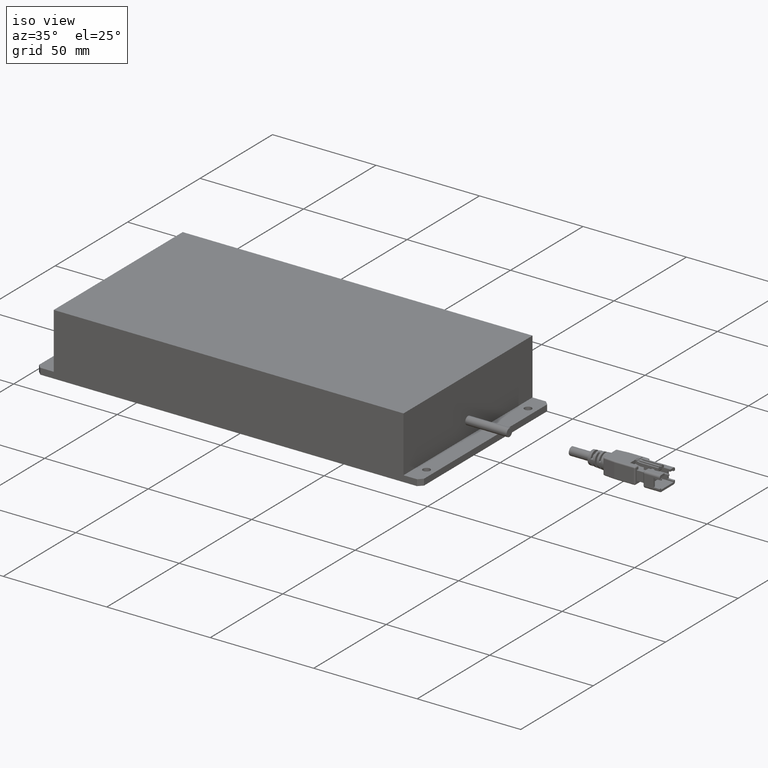
[diagram: clean part render]
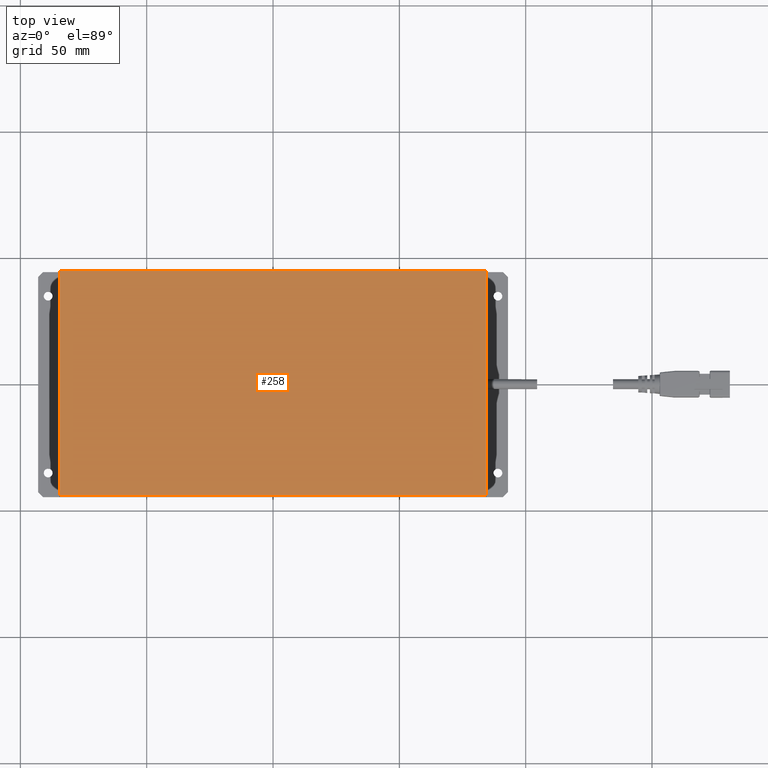
[diagram: tour spotlight — one face highlighted and labeled with its STEP entity id]
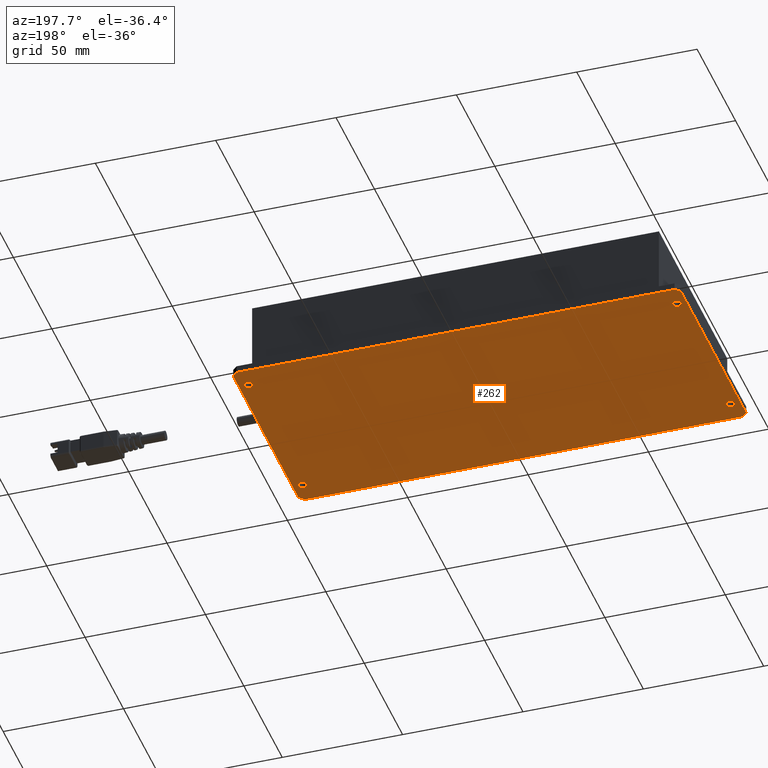
[diagram: tour spotlight — one face highlighted and labeled with its STEP entity id]
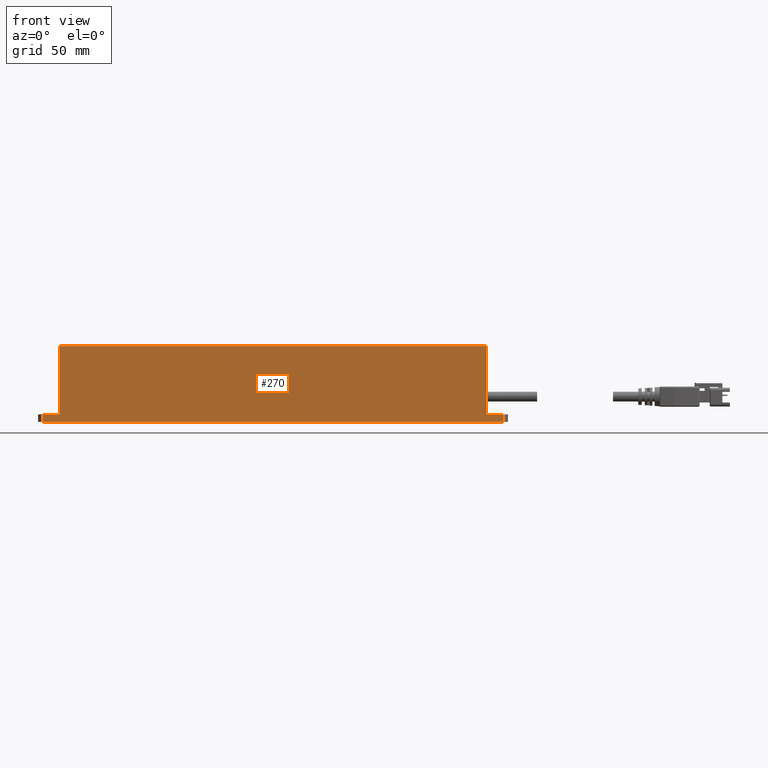
[diagram: tour spotlight — one face highlighted and labeled with its STEP entity id]
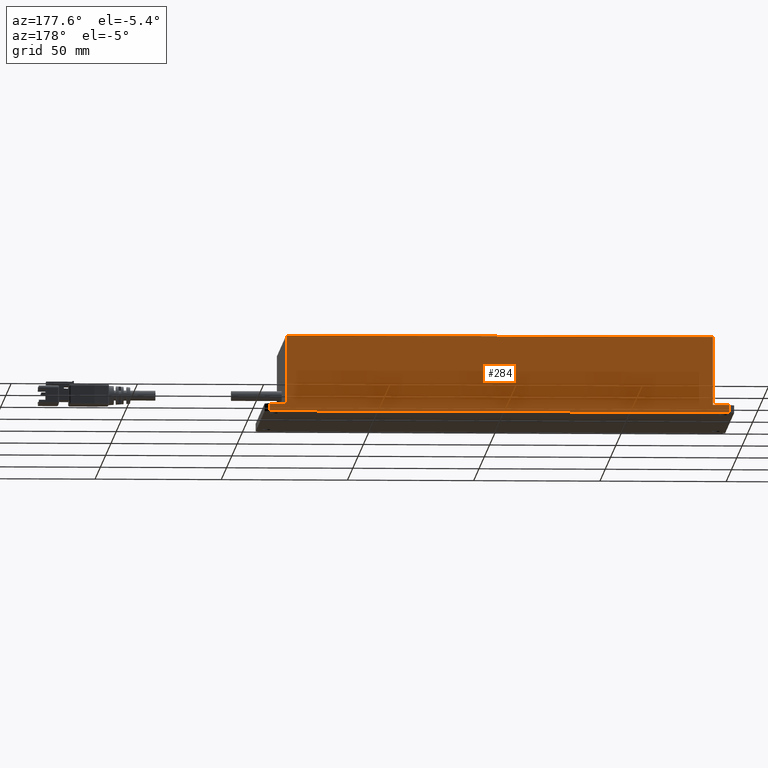
[diagram: tour spotlight — one face highlighted and labeled with its STEP entity id]
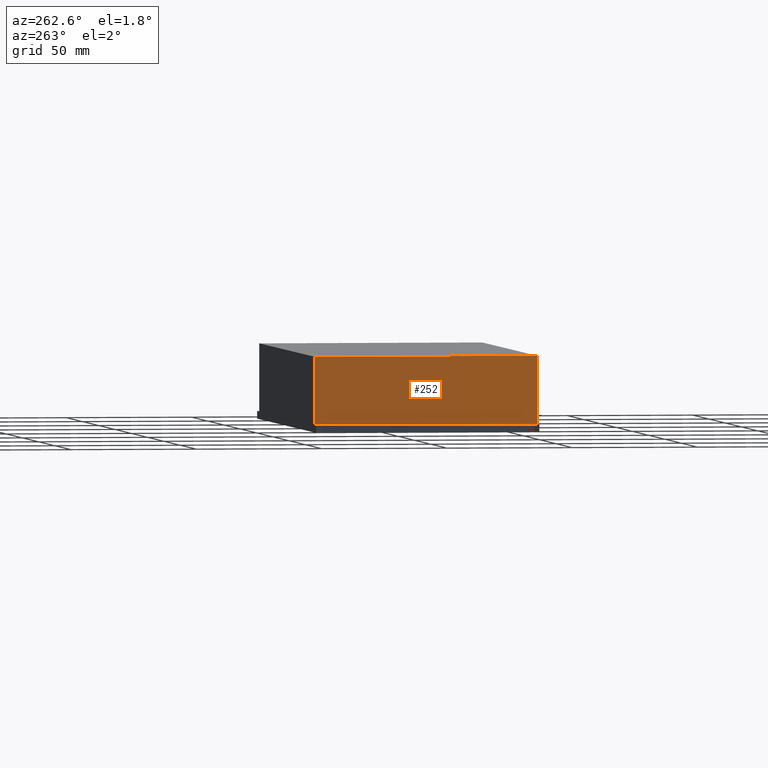
[diagram: tour spotlight — one face highlighted and labeled with its STEP entity id]
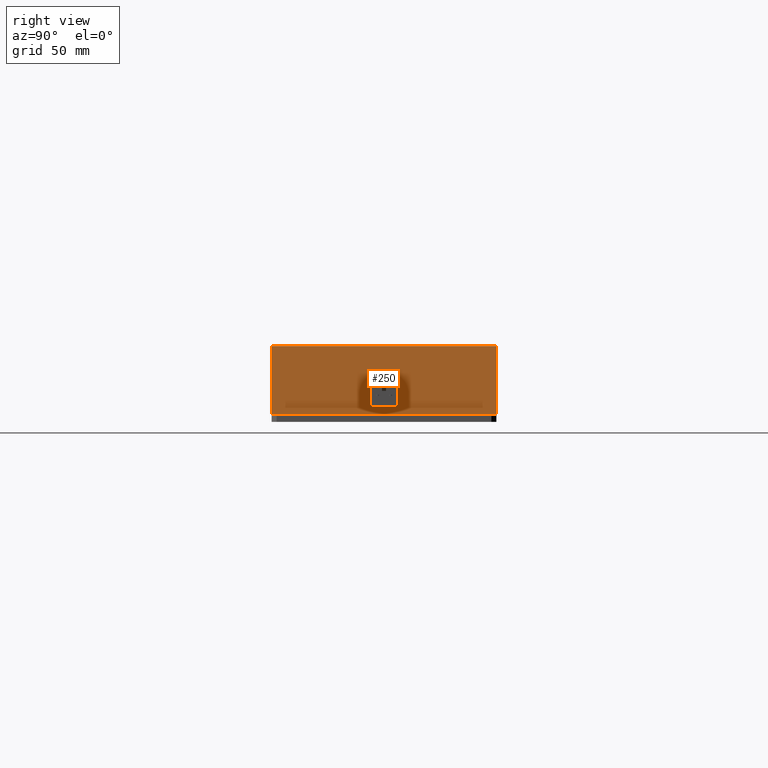
[diagram: tour spotlight — one face highlighted and labeled with its STEP entity id]
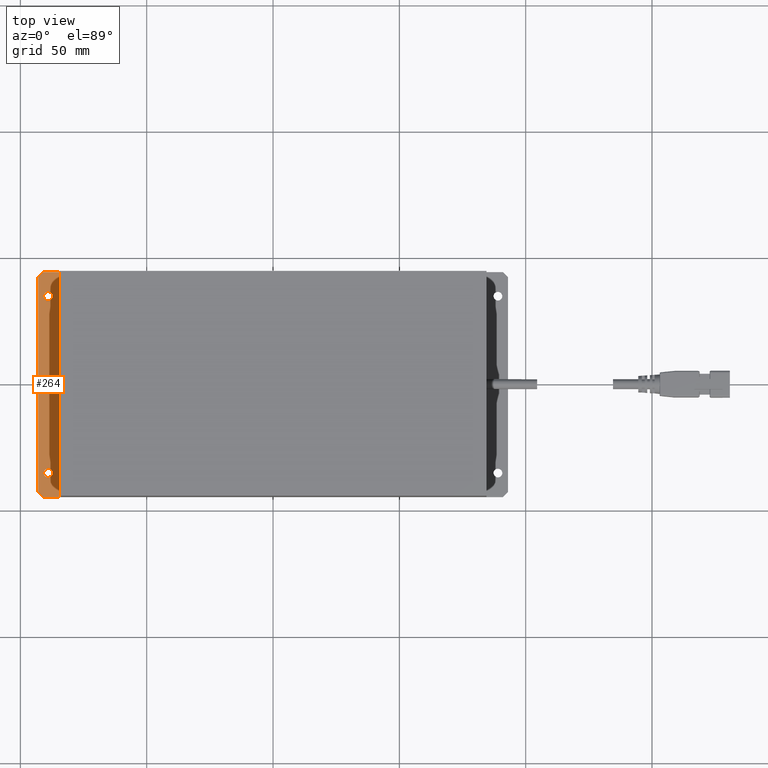
[diagram: tour spotlight — one face highlighted and labeled with its STEP entity id]
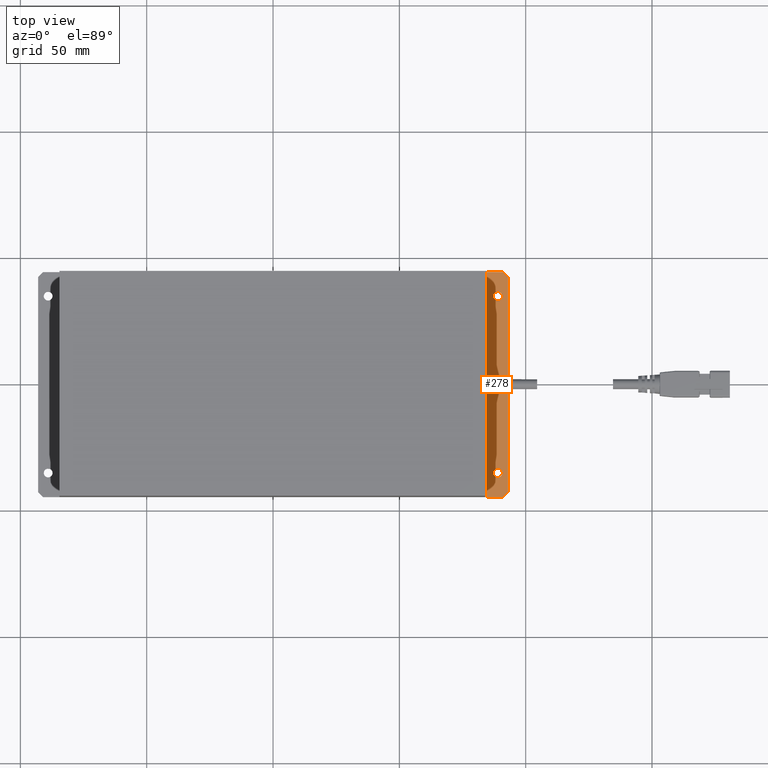
[diagram: tour spotlight — one face highlighted and labeled with its STEP entity id]
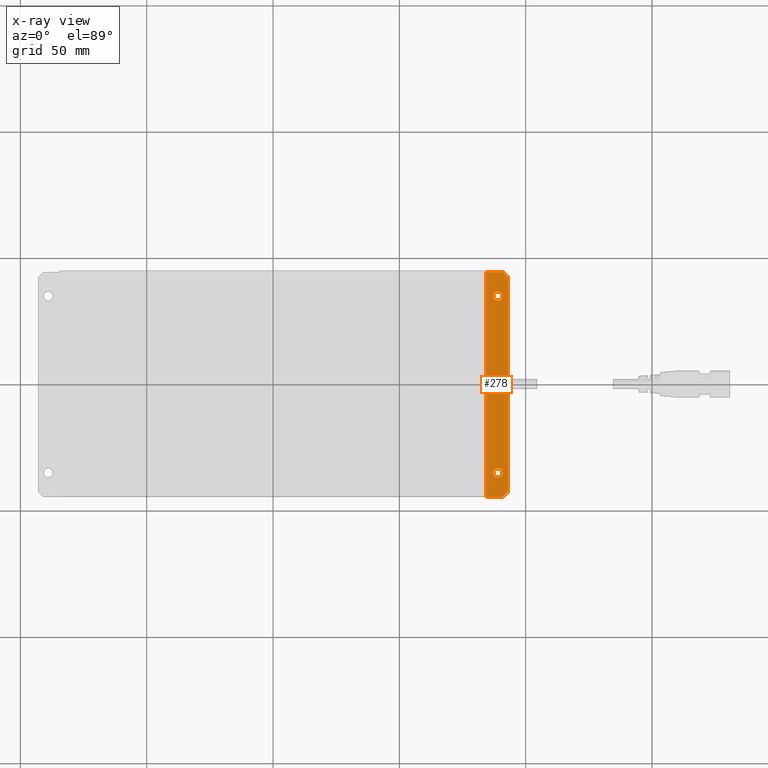
[diagram: x-ray of the same camera — body ghosted, this tour face saturated]
A machine part: a face-by-face anatomy tour. The part has 174 B-rep faces; the first image is the clean iso view, then the 8 largest visible faces are spotlighted one at a time (largest first), each with its STEP entity span.

Face 1 — top view, entity #258. In plain terms, the highlighted planar face has unit normal (0, 0, 1).
Definition (entity closure, byte-faithful):
#258=ADVANCED_FACE('12:247760',(#652),#653,.T.);
#652=FACE_OUTER_BOUND('',#1215,.T.);
#653=PLANE('',#1216);
#1215=EDGE_LOOP('',(#2160,#2161,#2162,#2163));
#1216=AXIS2_PLACEMENT_3D('',#2164,#2165,#2166);
#2160=ORIENTED_EDGE('',*,*,#3698,.F.);
#2161=ORIENTED_EDGE('',*,*,#3709,.F.);
#2162=ORIENTED_EDGE('',*,*,#3703,.F.);
#2163=ORIENTED_EDGE('',*,*,#3710,.F.);
#2164=CARTESIAN_POINT('',(0.0,0.0,0.03));
#2165=DIRECTION('',(0.0,0.0,1.0));
#2166=DIRECTION('',(1.0,0.0,0.0));
#3698=EDGE_CURVE('12:247820',#4314,#4316,#4317,.T.);
#3703=EDGE_CURVE('12:247817',#4323,#4325,#4326,.T.);
#3709=EDGE_CURVE('12:247892',#4325,#4314,#4333,.T.);
#3710=EDGE_CURVE('12:247880',#4316,#4323,#4334,.T.);
#4314=VERTEX_POINT('',#5214);
#4316=VERTEX_POINT('',#5217);
#4317=LINE('',#5218,#5219);
#4323=VERTEX_POINT('',#5227);
#4325=VERTEX_POINT('',#5230);
#4326=LINE('',#5231,#5232);
#4333=LINE('',#5240,#5241);
#4334=LINE('',#5242,#5243);
#5214=CARTESIAN_POINT('',(0.0845,0.0445,0.03));
#5217=CARTESIAN_POINT('',(0.0845,-0.0445,0.03));
#5218=CARTESIAN_POINT('',(0.0845,0.0,0.03));
#5219=VECTOR('',#6564,1.0);
#5227=CARTESIAN_POINT('',(-0.0845,-0.0445,0.03));
#5230=CARTESIAN_POINT('',(-0.0845,0.0445,0.03));
#5231=CARTESIAN_POINT('',(-0.0845,0.0,0.03));
#5232=VECTOR('',#6568,1.0);
#5240=CARTESIAN_POINT('',(-0.093,0.0445,0.03));
#5241=VECTOR('',#6573,1.0);
#5242=CARTESIAN_POINT('',(0.093,-0.0445,0.03));
#5243=VECTOR('',#6574,1.0);
#6564=DIRECTION('',(0.0,-1.0,0.0));
#6568=DIRECTION('',(0.0,1.0,0.0));
#6573=DIRECTION('',(1.0,0.0,0.0));
#6574=DIRECTION('',(-1.0,0.0,0.0));

Face 2 — auxiliary view, entity #262. In plain terms, the highlighted planar face has unit normal (0, 0, 1).
Definition (entity closure, byte-faithful):
#262=ADVANCED_FACE('12:247757',(#658,#659,#660,#661,#662),#663,.F.);
#658=FACE_BOUND('',#1221,.T.);
#659=FACE_BOUND('',#1222,.T.);
#660=FACE_BOUND('',#1223,.T.);
#661=FACE_BOUND('',#1224,.T.);
#662=FACE_OUTER_BOUND('',#1225,.T.);
#663=PLANE('',#1226);
#1221=EDGE_LOOP('',(#2176));
#1222=EDGE_LOOP('',(#2177));
#1223=EDGE_LOOP('',(#2178));
#1224=EDGE_LOOP('',(#2179));
#1225=EDGE_LOOP('',(#2180,#2181,#2182,#2183,#2184,#2185,#2186,#2187));
#1226=AXIS2_PLACEMENT_3D('',#2188,#2189,#2190);
#2176=ORIENTED_EDGE('',*,*,#3717,.F.);
#2177=ORIENTED_EDGE('',*,*,#3718,.F.);
#2178=ORIENTED_EDGE('',*,*,#3719,.F.);
#2179=ORIENTED_EDGE('',*,*,#3720,.F.);
#2180=ORIENTED_EDGE('',*,*,#3714,.F.);
#2181=ORIENTED_EDGE('',*,*,#3721,.T.);
#2182=ORIENTED_EDGE('',*,*,#3722,.F.);
#2183=ORIENTED_EDGE('',*,*,#3723,.T.);
#2184=ORIENTED_EDGE('',*,*,#3724,.F.);
#2185=ORIENTED_EDGE('',*,*,#3725,.T.);
#2186=ORIENTED_EDGE('',*,*,#3726,.F.);
#2187=ORIENTED_EDGE('',*,*,#3727,.T.);
#2188=CARTESIAN_POINT('',(0.0,0.0,0.0));
#2189=DIRECTION('',(0.0,0.0,1.0));
#2190=DIRECTION('',(1.0,0.0,0.0));
#3714=EDGE_CURVE('12:247910',#4339,#4341,#4342,.F.);
#3717=EDGE_CURVE('12:247931',#4345,#4345,#4346,.F.);
#3718=EDGE_CURVE('12:247925',#4347,#4347,#4348,.F.);
#3719=EDGE_CURVE('12:247919',#4349,#4349,#4350,.F.);
#3720=EDGE_CURVE('12:247913',#4351,#4351,#4352,.F.);
#3721=EDGE_CURVE('12:247835',#4339,#4353,#4354,.F.);
#3722=EDGE_CURVE('12:247901',#4355,#4353,#4356,.F.);
#3723=EDGE_CURVE('12:247871',#4355,#4357,#4358,.F.);
#3724=EDGE_CURVE('12:247904',#4359,#4357,#4360,.F.);
#3725=EDGE_CURVE('12:247859',#4359,#4361,#4362,.F.);
#3726=EDGE_CURVE('12:247907',#4363,#4361,#4364,.F.);
#3727=EDGE_CURVE('12:247847',#4363,#4341,#4365,.F.);
#4339=VERTEX_POINT('',#5249);
#4341=VERTEX_POINT('',#5252);
#4342=LINE('',#5253,#5254);
#4345=VERTEX_POINT('',#5258);
#4346=CIRCLE('',#5259,0.00175);
#4347=VERTEX_POINT('',#5260);
#4348=CIRCLE('',#5261,0.00175);
#4349=VERTEX_POINT('',#5262);
#4350=CIRCLE('',#5263,0.00175);
#4351=VERTEX_POINT('',#5264);
#4352=CIRCLE('',#5265,0.00175);
#4353=VERTEX_POINT('',#5266);
#4354=LINE('',#5267,#5268);
#4355=VERTEX_POINT('',#5269);
#4356=LINE('',#5270,#5271);
#4357=VERTEX_POINT('',#5272);
#4358=LINE('',#5273,#5274);
#4359=VERTEX_POINT('',#5275);
#4360=LINE('',#5276,#5277);
#4361=VERTEX_POINT('',#5278);
#4362=LINE('',#5279,#5280);
#4363=VERTEX_POINT('',#5281);
#4364=LINE('',#5282,#5283);
#4365=LINE('',#5284,#5285);
#5249=CARTESIAN_POINT('',(0.093,-0.0425,0.0));
#5252=CARTESIAN_POINT('',(0.093,0.0425,0.0));
#5253=CARTESIAN_POINT('',(0.093,0.0445,0.0));
#5254=VECTOR('',#6577,1.0);
#5258=CARTESIAN_POINT('',(0.09075,-0.035,0.0));
#5259=AXIS2_PLACEMENT_3D('',#6579,#6580,#6581);
#5260=CARTESIAN_POINT('',(0.09075,0.035,0.0));
#5261=AXIS2_PLACEMENT_3D('',#6582,#6583,#6584);
#5262=CARTESIAN_POINT('',(-0.08725,-0.035,0.0));
#5263=AXIS2_PLACEMENT_3D('',#6585,#6586,#6587);
#5264=CARTESIAN_POINT('',(-0.08725,0.035,0.0));
#5265=AXIS2_PLACEMENT_3D('',#6588,#6589,#6590);
#5266=CARTESIAN_POINT('',(0.091,-0.0445,0.0));
#5267=CARTESIAN_POINT('',(0.093,-0.0425,0.0));
#5268=VECTOR('',#6591,1.0);
#5269=CARTESIAN_POINT('',(-0.091,-0.0445,0.0));
#5270=CARTESIAN_POINT('',(0.093,-0.0445,0.0));
#5271=VECTOR('',#6592,1.0);
#5272=CARTESIAN_POINT('',(-0.093,-0.0425,0.0));
#5273=CARTESIAN_POINT('',(-0.091,-0.0445,0.0));
#5274=VECTOR('',#6593,1.0);
#5275=CARTESIAN_POINT('',(-0.093,0.0425,0.0));
#5276=CARTESIAN_POINT('',(-0.093,-0.0445,0.0));
#5277=VECTOR('',#6594,1.0);
#5278=CARTESIAN_POINT('',(-0.091,0.0445,0.0));
#5279=CARTESIAN_POINT('',(-0.093,0.0425,0.0));
#5280=VECTOR('',#6595,1.0);
#5281=CARTESIAN_POINT('',(0.091,0.0445,0.0));
#5282=CARTESIAN_POINT('',(-0.093,0.0445,0.0));
#5283=VECTOR('',#6596,1.0);
#5284=CARTESIAN_POINT('',(0.091,0.0445,0.0));
#5285=VECTOR('',#6597,1.0);
#6577=DIRECTION('',(0.0,-1.0,0.0));
#6579=CARTESIAN_POINT('',(0.089,-0.035,0.0));
#6580=DIRECTION('',(0.0,0.0,1.0));
#6581=DIRECTION('',(1.0,0.0,-0.0));
#6582=CARTESIAN_POINT('',(0.089,0.035,0.0));
#6583=DIRECTION('',(0.0,0.0,1.0));
#6584=DIRECTION('',(1.0,0.0,-0.0));
#6585=CARTESIAN_POINT('',(-0.089,-0.035,0.0));
#6586=DIRECTION('',(0.0,0.0,1.0));
#6587=DIRECTION('',(1.0,0.0,-0.0));
#6588=CARTESIAN_POINT('',(-0.089,0.035,0.0));
#6589=DIRECTION('',(0.0,0.0,1.0));
#6590=DIRECTION('',(1.0,0.0,-0.0));
#6591=DIRECTION('',(0.707106781186548,0.707106781186548,-0.0));
#6592=DIRECTION('',(-1.0,0.0,0.0));
#6593=DIRECTION('',(0.707106781186548,-0.707106781186548,0.0));
#6594=DIRECTION('',(0.0,1.0,0.0));
#6595=DIRECTION('',(-0.707106781186548,-0.707106781186548,0.0));
#6596=DIRECTION('',(1.0,0.0,0.0));
#6597=DIRECTION('',(-0.707106781186548,0.707106781186548,0.0));

Face 3 — front view, entity #270. In plain terms, the highlighted planar face has unit normal (0, -1, 0).
Definition (entity closure, byte-faithful):
#270=ADVANCED_FACE('12:247772',(#676),#677,.T.);
#676=FACE_OUTER_BOUND('',#1239,.T.);
#677=PLANE('',#1240);
#1239=EDGE_LOOP('',(#2220,#2221,#2222,#2223,#2224,#2225,#2226,#2227));
#1240=AXIS2_PLACEMENT_3D('',#2228,#2229,#2230);
#2220=ORIENTED_EDGE('',*,*,#3722,.T.);
#2221=ORIENTED_EDGE('',*,*,#3743,.T.);
#2222=ORIENTED_EDGE('',*,*,#3744,.F.);
#2223=ORIENTED_EDGE('',*,*,#3699,.F.);
#2224=ORIENTED_EDGE('',*,*,#3710,.T.);
#2225=ORIENTED_EDGE('',*,*,#3702,.T.);
#2226=ORIENTED_EDGE('',*,*,#3731,.F.);
#2227=ORIENTED_EDGE('',*,*,#3738,.T.);
#2228=CARTESIAN_POINT('',(0.093,-0.0445,0.0));
#2229=DIRECTION('',(0.0,-1.0,0.0));
#2230=DIRECTION('',(0.0,0.0,-1.0));
#3699=EDGE_CURVE('12:247814',#4316,#4312,#4318,.F.);
#3702=EDGE_CURVE('12:247805',#4323,#4320,#4324,.T.);
#3710=EDGE_CURVE('12:247880',#4316,#4323,#4334,.T.);
#3722=EDGE_CURVE('12:247901',#4355,#4353,#4356,.F.);
#3731=EDGE_CURVE('12:247877',#4371,#4320,#4372,.F.);
#3738=EDGE_CURVE('12:247874',#4371,#4355,#4382,.T.);
#3743=EDGE_CURVE('12:247832',#4353,#4387,#4388,.T.);
#3744=EDGE_CURVE('12:247883',#4312,#4387,#4389,.F.);
#4312=VERTEX_POINT('',#5211);
#4316=VERTEX_POINT('',#5217);
#4318=LINE('',#5220,#5221);
#4320=VERTEX_POINT('',#5223);
#4323=VERTEX_POINT('',#5227);
#4324=LINE('',#5228,#5229);
#4334=LINE('',#5242,#5243);
#4353=VERTEX_POINT('',#5266);
#4355=VERTEX_POINT('',#5269);
#4356=LINE('',#5270,#5271);
#4371=VERTEX_POINT('',#5291);
#4372=LINE('',#5292,#5293);
#4382=LINE('',#5308,#5309);
#4387=VERTEX_POINT('',#5316);
#4388=LINE('',#5317,#5318);
#4389=LINE('',#5319,#5320);
#5211=CARTESIAN_POINT('',(0.0845,-0.0445,0.003));
#5217=CARTESIAN_POINT('',(0.0845,-0.0445,0.03));
#5220=CARTESIAN_POINT('',(0.0845,-0.0445,0.003));
#5221=VECTOR('',#6565,1.0);
#5223=CARTESIAN_POINT('',(-0.0845,-0.0445,0.003));
#5227=CARTESIAN_POINT('',(-0.0845,-0.0445,0.03));
#5228=CARTESIAN_POINT('',(-0.0845,-0.0445,0.003));
#5229=VECTOR('',#6567,1.0);
#5242=CARTESIAN_POINT('',(0.093,-0.0445,0.03));
#5243=VECTOR('',#6574,1.0);
#5266=CARTESIAN_POINT('',(0.091,-0.0445,0.0));
#5269=CARTESIAN_POINT('',(-0.091,-0.0445,0.0));
#5270=CARTESIAN_POINT('',(0.093,-0.0445,0.0));
#5271=VECTOR('',#6592,1.0);
#5291=CARTESIAN_POINT('',(-0.091,-0.0445,0.003));
#5292=CARTESIAN_POINT('',(0.093,-0.0445,0.003));
#5293=VECTOR('',#6604,1.0);
#5308=CARTESIAN_POINT('',(-0.091,-0.0445,0.0));
#5309=VECTOR('',#6610,1.0);
#5316=CARTESIAN_POINT('',(0.091,-0.0445,0.003));
#5317=CARTESIAN_POINT('',(0.091,-0.0445,0.0));
#5318=VECTOR('',#6613,1.0);
#5319=CARTESIAN_POINT('',(0.093,-0.0445,0.003));
#5320=VECTOR('',#6614,1.0);
#6565=DIRECTION('',(0.0,0.0,1.0));
#6567=DIRECTION('',(0.0,0.0,-1.0));
#6574=DIRECTION('',(-1.0,0.0,0.0));
#6592=DIRECTION('',(-1.0,0.0,0.0));
#6604=DIRECTION('',(-1.0,0.0,0.0));
#6610=DIRECTION('',(0.0,0.0,-1.0));
#6613=DIRECTION('',(0.0,0.0,1.0));
#6614=DIRECTION('',(-1.0,0.0,0.0));

Face 4 — auxiliary view, entity #284. In plain terms, the highlighted planar face has unit normal (0, 1, 0).
Definition (entity closure, byte-faithful):
#284=ADVANCED_FACE('12:247766',(#702),#703,.T.);
#702=FACE_OUTER_BOUND('',#1265,.T.);
#703=PLANE('',#1266);
#1265=EDGE_LOOP('',(#2278,#2279,#2280,#2281,#2282,#2283,#2284,#2285));
#1266=AXIS2_PLACEMENT_3D('',#2286,#2287,#2288);
#2278=ORIENTED_EDGE('',*,*,#3754,.F.);
#2279=ORIENTED_EDGE('',*,*,#3747,.T.);
#2280=ORIENTED_EDGE('',*,*,#3726,.T.);
#2281=ORIENTED_EDGE('',*,*,#3740,.T.);
#2282=ORIENTED_EDGE('',*,*,#3732,.F.);
#2283=ORIENTED_EDGE('',*,*,#3704,.F.);
#2284=ORIENTED_EDGE('',*,*,#3709,.T.);
#2285=ORIENTED_EDGE('',*,*,#3697,.T.);
#2286=CARTESIAN_POINT('',(-0.093,0.0445,0.0));
#2287=DIRECTION('',(-0.0,1.0,0.0));
#2288=DIRECTION('',(0.0,0.0,1.0));
#3697=EDGE_CURVE('12:247811',#4314,#4311,#4315,.T.);
#3704=EDGE_CURVE('12:247808',#4325,#4321,#4327,.F.);
#3709=EDGE_CURVE('12:247892',#4325,#4314,#4333,.T.);
#3726=EDGE_CURVE('12:247907',#4363,#4361,#4364,.F.);
#3732=EDGE_CURVE('12:247895',#4321,#4373,#4374,.F.);
#3740=EDGE_CURVE('12:247856',#4361,#4373,#4384,.T.);
#3747=EDGE_CURVE('12:247850',#4391,#4363,#4393,.T.);
#3754=EDGE_CURVE('12:247889',#4391,#4311,#4402,.F.);
#4311=VERTEX_POINT('',#5210);
#4314=VERTEX_POINT('',#5214);
#4315=LINE('',#5215,#5216);
#4321=VERTEX_POINT('',#5224);
#4325=VERTEX_POINT('',#5230);
#4327=LINE('',#5233,#5234);
#4333=LINE('',#5240,#5241);
#4361=VERTEX_POINT('',#5278);
#4363=VERTEX_POINT('',#5281);
#4364=LINE('',#5282,#5283);
#4373=VERTEX_POINT('',#5294);
#4374=LINE('',#5295,#5296);
#4384=LINE('',#5311,#5312);
#4391=VERTEX_POINT('',#5322);
#4393=LINE('',#5325,#5326);
#4402=LINE('',#5336,#5337);
#5210=CARTESIAN_POINT('',(0.0845,0.0445,0.003));
#5214=CARTESIAN_POINT('',(0.0845,0.0445,0.03));
#5215=CARTESIAN_POINT('',(0.0845,0.0445,0.003));
#5216=VECTOR('',#6563,1.0);
#5224=CARTESIAN_POINT('',(-0.0845,0.0445,0.003));
#5230=CARTESIAN_POINT('',(-0.0845,0.0445,0.03));
#5233=CARTESIAN_POINT('',(-0.0845,0.0445,0.003));
#5234=VECTOR('',#6569,1.0);
#5240=CARTESIAN_POINT('',(-0.093,0.0445,0.03));
#5241=VECTOR('',#6573,1.0);
#5278=CARTESIAN_POINT('',(-0.091,0.0445,0.0));
#5281=CARTESIAN_POINT('',(0.091,0.0445,0.0));
#5282=CARTESIAN_POINT('',(-0.093,0.0445,0.0));
#5283=VECTOR('',#6596,1.0);
#5294=CARTESIAN_POINT('',(-0.091,0.0445,0.003));
#5295=CARTESIAN_POINT('',(-0.093,0.0445,0.003));
#5296=VECTOR('',#6605,1.0);
#5311=CARTESIAN_POINT('',(-0.091,0.0445,0.0));
#5312=VECTOR('',#6611,1.0);
#5322=CARTESIAN_POINT('',(0.091,0.0445,0.003));
#5325=CARTESIAN_POINT('',(0.091,0.0445,0.0));
#5326=VECTOR('',#6616,1.0);
#5336=CARTESIAN_POINT('',(-0.093,0.0445,0.003));
#5337=VECTOR('',#6624,1.0);
#6563=DIRECTION('',(0.0,-0.0,-1.0));
#6569=DIRECTION('',(0.0,0.0,1.0));
#6573=DIRECTION('',(1.0,0.0,0.0));
#6596=DIRECTION('',(1.0,0.0,0.0));
#6605=DIRECTION('',(1.0,0.0,0.0));
#6611=DIRECTION('',(0.0,0.0,1.0));
#6616=DIRECTION('',(0.0,0.0,-1.0));
#6624=DIRECTION('',(1.0,0.0,0.0));

Face 5 — auxiliary view, entity #252. In plain terms, the highlighted planar face has unit normal (1, 0, 0).
Definition (entity closure, byte-faithful):
#252=ADVANCED_FACE('12:247745',(#642),#643,.F.);
#642=FACE_OUTER_BOUND('',#1205,.T.);
#643=PLANE('',#1206);
#1205=EDGE_LOOP('',(#2141,#2142,#2143,#2144));
#1206=AXIS2_PLACEMENT_3D('',#2145,#2146,#2147);
#2141=ORIENTED_EDGE('',*,*,#3701,.F.);
#2142=ORIENTED_EDGE('',*,*,#3702,.F.);
#2143=ORIENTED_EDGE('',*,*,#3703,.T.);
#2144=ORIENTED_EDGE('',*,*,#3704,.T.);
#2145=CARTESIAN_POINT('',(-0.0845,-0.0445,0.003));
#2146=DIRECTION('',(1.0,0.0,0.0));
#2147=DIRECTION('',(0.0,1.0,0.0));
#3701=EDGE_CURVE('12:247826',#4320,#4321,#4322,.T.);
#3702=EDGE_CURVE('12:247805',#4323,#4320,#4324,.T.);
#3703=EDGE_CURVE('12:247817',#4323,#4325,#4326,.T.);
#3704=EDGE_CURVE('12:247808',#4325,#4321,#4327,.F.);
#4320=VERTEX_POINT('',#5223);
#4321=VERTEX_POINT('',#5224);
#4322=LINE('',#5225,#5226);
#4323=VERTEX_POINT('',#5227);
#4324=LINE('',#5228,#5229);
#4325=VERTEX_POINT('',#5230);
#4326=LINE('',#5231,#5232);
#4327=LINE('',#5233,#5234);
#5223=CARTESIAN_POINT('',(-0.0845,-0.0445,0.003));
#5224=CARTESIAN_POINT('',(-0.0845,0.0445,0.003));
#5225=CARTESIAN_POINT('',(-0.0845,-0.0445,0.003));
#5226=VECTOR('',#6566,1.0);
#5227=CARTESIAN_POINT('',(-0.0845,-0.0445,0.03));
#5228=CARTESIAN_POINT('',(-0.0845,-0.0445,0.003));
#5229=VECTOR('',#6567,1.0);
#5230=CARTESIAN_POINT('',(-0.0845,0.0445,0.03));
#5231=CARTESIAN_POINT('',(-0.0845,0.0,0.03));
#5232=VECTOR('',#6568,1.0);
#5233=CARTESIAN_POINT('',(-0.0845,0.0445,0.003));
#5234=VECTOR('',#6569,1.0);
#6566=DIRECTION('',(0.0,1.0,0.0));
#6567=DIRECTION('',(0.0,0.0,-1.0));
#6568=DIRECTION('',(0.0,1.0,0.0));
#6569=DIRECTION('',(0.0,0.0,1.0));

Face 6 — right view, entity #250. In plain terms, the highlighted planar face has unit normal (-1, 0, 0).
Definition (entity closure, byte-faithful):
#250=ADVANCED_FACE('12:247748',(#638,#639),#640,.F.);
#638=FACE_BOUND('',#1201,.T.);
#639=FACE_OUTER_BOUND('',#1202,.T.);
#640=PLANE('',#1203);
#1201=EDGE_LOOP('',(#2132));
#1202=EDGE_LOOP('',(#2133,#2134,#2135,#2136));
#1203=AXIS2_PLACEMENT_3D('',#2137,#2138,#2139);
#2132=ORIENTED_EDGE('',*,*,#3695,.F.);
#2133=ORIENTED_EDGE('',*,*,#3696,.F.);
#2134=ORIENTED_EDGE('',*,*,#3697,.F.);
#2135=ORIENTED_EDGE('',*,*,#3698,.T.);
#2136=ORIENTED_EDGE('',*,*,#3699,.T.);
#2137=CARTESIAN_POINT('',(0.0845,0.0445,0.003));
#2138=DIRECTION('',(-1.0,0.0,0.0));
#2139=DIRECTION('',(0.0,-1.0,0.0));
#3695=EDGE_CURVE('12:247802',#4309,#4309,#4310,.T.);
#3696=EDGE_CURVE('12:247823',#4311,#4312,#4313,.T.);
#3697=EDGE_CURVE('12:247811',#4314,#4311,#4315,.T.);
#3698=EDGE_CURVE('12:247820',#4314,#4316,#4317,.T.);
#3699=EDGE_CURVE('12:247814',#4316,#4312,#4318,.F.);
#4309=VERTEX_POINT('',#5208);
#4310=CIRCLE('',#5209,0.00195);
#4311=VERTEX_POINT('',#5210);
#4312=VERTEX_POINT('',#5211);
#4313=LINE('',#5212,#5213);
#4314=VERTEX_POINT('',#5214);
#4315=LINE('',#5215,#5216);
#4316=VERTEX_POINT('',#5217);
#4317=LINE('',#5218,#5219);
#4318=LINE('',#5220,#5221);
#5208=CARTESIAN_POINT('',(0.0845,0.00195,0.01));
#5209=AXIS2_PLACEMENT_3D('',#6559,#6560,#6561);
#5210=CARTESIAN_POINT('',(0.0845,0.0445,0.003));
#5211=CARTESIAN_POINT('',(0.0845,-0.0445,0.003));
#5212=CARTESIAN_POINT('',(0.0845,0.0445,0.003));
#5213=VECTOR('',#6562,1.0);
#5214=CARTESIAN_POINT('',(0.0845,0.0445,0.03));
#5215=CARTESIAN_POINT('',(0.0845,0.0445,0.003));
#5216=VECTOR('',#6563,1.0);
#5217=CARTESIAN_POINT('',(0.0845,-0.0445,0.03));
#5218=CARTESIAN_POINT('',(0.0845,0.0,0.03));
#5219=VECTOR('',#6564,1.0);
#5220=CARTESIAN_POINT('',(0.0845,-0.0445,0.003));
#5221=VECTOR('',#6565,1.0);
#6559=CARTESIAN_POINT('',(0.0845,-2.68001224511261E-18,0.01));
#6560=DIRECTION('',(1.0,0.0,-0.0));
#6561=DIRECTION('',(-0.0,1.0,0.0));
#6562=DIRECTION('',(0.0,-1.0,0.0));
#6563=DIRECTION('',(0.0,-0.0,-1.0));
#6564=DIRECTION('',(0.0,-1.0,0.0));
#6565=DIRECTION('',(0.0,0.0,1.0));

Face 7 — top view, entity #264. In plain terms, the highlighted planar face has unit normal (0, 0, 1).
Definition (entity closure, byte-faithful):
#264=ADVANCED_FACE('12:247754',(#665,#666,#667),#668,.T.);
#665=FACE_BOUND('',#1228,.T.);
#666=FACE_BOUND('',#1229,.T.);
#667=FACE_OUTER_BOUND('',#1230,.T.);
#668=PLANE('',#1231);
#1228=EDGE_LOOP('',(#2192));
#1229=EDGE_LOOP('',(#2193));
#1230=EDGE_LOOP('',(#2194,#2195,#2196,#2197,#2198,#2199));
#1231=AXIS2_PLACEMENT_3D('',#2200,#2201,#2202);
#2192=ORIENTED_EDGE('',*,*,#3729,.F.);
#2193=ORIENTED_EDGE('',*,*,#3730,.F.);
#2194=ORIENTED_EDGE('',*,*,#3731,.T.);
#2195=ORIENTED_EDGE('',*,*,#3701,.T.);
#2196=ORIENTED_EDGE('',*,*,#3732,.T.);
#2197=ORIENTED_EDGE('',*,*,#3733,.T.);
#2198=ORIENTED_EDGE('',*,*,#3734,.T.);
#2199=ORIENTED_EDGE('',*,*,#3735,.T.);
#2200=CARTESIAN_POINT('',(0.0,0.0,0.003));
#2201=DIRECTION('',(0.0,0.0,1.0));
#2202=DIRECTION('',(1.0,0.0,0.0));
#3701=EDGE_CURVE('12:247826',#4320,#4321,#4322,.T.);
#3729=EDGE_CURVE('12:247916',#4367,#4367,#4368,.T.);
#3730=EDGE_CURVE('12:247922',#4369,#4369,#4370,.T.);
#3731=EDGE_CURVE('12:247877',#4371,#4320,#4372,.F.);
#3732=EDGE_CURVE('12:247895',#4321,#4373,#4374,.F.);
#3733=EDGE_CURVE('12:247853',#4373,#4375,#4376,.F.);
#3734=EDGE_CURVE('12:247886',#4375,#4377,#4378,.F.);
#3735=EDGE_CURVE('12:247865',#4377,#4371,#4379,.F.);
#4320=VERTEX_POINT('',#5223);
#4321=VERTEX_POINT('',#5224);
#4322=LINE('',#5225,#5226);
#4367=VERTEX_POINT('',#5287);
#4368=CIRCLE('',#5288,0.00175);
#4369=VERTEX_POINT('',#5289);
#4370=CIRCLE('',#5290,0.00175);
#4371=VERTEX_POINT('',#5291);
#4372=LINE('',#5292,#5293);
#4373=VERTEX_POINT('',#5294);
#4374=LINE('',#5295,#5296);
#4375=VERTEX_POINT('',#5297);
#4376=LINE('',#5298,#5299);
#4377=VERTEX_POINT('',#5300);
#4378=LINE('',#5301,#5302);
#4379=LINE('',#5303,#5304);
#5223=CARTESIAN_POINT('',(-0.0845,-0.0445,0.003));
#5224=CARTESIAN_POINT('',(-0.0845,0.0445,0.003));
#5225=CARTESIAN_POINT('',(-0.0845,-0.0445,0.003));
#5226=VECTOR('',#6566,1.0);
#5287=CARTESIAN_POINT('',(-0.08725,0.035,0.003));
#5288=AXIS2_PLACEMENT_3D('',#6598,#6599,#6600);
#5289=CARTESIAN_POINT('',(-0.08725,-0.035,0.003));
#5290=AXIS2_PLACEMENT_3D('',#6601,#6602,#6603);
#5291=CARTESIAN_POINT('',(-0.091,-0.0445,0.003));
#5292=CARTESIAN_POINT('',(0.093,-0.0445,0.003));
#5293=VECTOR('',#6604,1.0);
#5294=CARTESIAN_POINT('',(-0.091,0.0445,0.003));
#5295=CARTESIAN_POINT('',(-0.093,0.0445,0.003));
#5296=VECTOR('',#6605,1.0);
#5297=CARTESIAN_POINT('',(-0.093,0.0425,0.003));
#5298=CARTESIAN_POINT('',(-0.06775,0.06775,0.003));
#5299=VECTOR('',#6606,1.0);
#5300=CARTESIAN_POINT('',(-0.093,-0.0425,0.003));
#5301=CARTESIAN_POINT('',(-0.093,-0.0445,0.003));
#5302=VECTOR('',#6607,1.0);
#5303=CARTESIAN_POINT('',(-0.06775,-0.06775,0.003));
#5304=VECTOR('',#6608,1.0);
#6566=DIRECTION('',(0.0,1.0,0.0));
#6598=CARTESIAN_POINT('',(-0.089,0.035,0.003));
#6599=DIRECTION('',(0.0,0.0,1.0));
#6600=DIRECTION('',(1.0,0.0,0.0));
#6601=CARTESIAN_POINT('',(-0.089,-0.035,0.003));
#6602=DIRECTION('',(0.0,0.0,1.0));
#6603=DIRECTION('',(1.0,0.0,0.0));
#6604=DIRECTION('',(-1.0,0.0,0.0));
#6605=DIRECTION('',(1.0,0.0,0.0));
#6606=DIRECTION('',(0.707106781186548,0.707106781186548,-0.0));
#6607=DIRECTION('',(0.0,1.0,0.0));
#6608=DIRECTION('',(-0.707106781186548,0.707106781186548,0.0));

Face 8 — top view, entity #278. An x-ray twin of the same camera follows (body ghosted, this face saturated) — the face is partly hidden behind the body. In plain terms, the highlighted planar face has unit normal (0, 0, 1).
Definition (entity closure, byte-faithful):
#278=ADVANCED_FACE('12:247751',(#689,#690,#691),#692,.T.);
#689=FACE_BOUND('',#1252,.T.);
#690=FACE_BOUND('',#1253,.T.);
#691=FACE_OUTER_BOUND('',#1254,.T.);
#692=PLANE('',#1255);
#1252=EDGE_LOOP('',(#2254));
#1253=EDGE_LOOP('',(#2255));
#1254=EDGE_LOOP('',(#2256,#2257,#2258,#2259,#2260,#2261));
#1255=AXIS2_PLACEMENT_3D('',#2262,#2263,#2264);
#2254=ORIENTED_EDGE('',*,*,#3752,.F.);
#2255=ORIENTED_EDGE('',*,*,#3753,.F.);
#2256=ORIENTED_EDGE('',*,*,#3754,.T.);
#2257=ORIENTED_EDGE('',*,*,#3696,.T.);
#2258=ORIENTED_EDGE('',*,*,#3744,.T.);
#2259=ORIENTED_EDGE('',*,*,#3749,.T.);
#2260=ORIENTED_EDGE('',*,*,#3712,.T.);
#2261=ORIENTED_EDGE('',*,*,#3746,.T.);
#2262=CARTESIAN_POINT('',(0.0,0.0,0.003));
#2263=DIRECTION('',(0.0,0.0,1.0));
#2264=DIRECTION('',(1.0,0.0,0.0));
#3696=EDGE_CURVE('12:247823',#4311,#4312,#4313,.T.);
#3712=EDGE_CURVE('12:247898',#4336,#4337,#4338,.F.);
#3744=EDGE_CURVE('12:247883',#4312,#4387,#4389,.F.);
#3746=EDGE_CURVE('12:247841',#4337,#4391,#4392,.F.);
#3749=EDGE_CURVE('12:247829',#4387,#4336,#4395,.F.);
#3752=EDGE_CURVE('12:247934',#4398,#4398,#4399,.T.);
#3753=EDGE_CURVE('12:247928',#4400,#4400,#4401,.T.);
#3754=EDGE_CURVE('12:247889',#4391,#4311,#4402,.F.);
#4311=VERTEX_POINT('',#5210);
#4312=VERTEX_POINT('',#5211);
#4313=LINE('',#5212,#5213);
#4336=VERTEX_POINT('',#5245);
#4337=VERTEX_POINT('',#5246);
#4338=LINE('',#5247,#5248);
#4387=VERTEX_POINT('',#5316);
#4389=LINE('',#5319,#5320);
#4391=VERTEX_POINT('',#5322);
#4392=LINE('',#5323,#5324);
#4395=LINE('',#5328,#5329);
#4398=VERTEX_POINT('',#5332);
#4399=CIRCLE('',#5333,0.00175);
#4400=VERTEX_POINT('',#5334);
#4401=CIRCLE('',#5335,0.00175);
#4402=LINE('',#5336,#5337);
#5210=CARTESIAN_POINT('',(0.0845,0.0445,0.003));
#5211=CARTESIAN_POINT('',(0.0845,-0.0445,0.003));
#5212=CARTESIAN_POINT('',(0.0845,0.0445,0.003));
#5213=VECTOR('',#6562,1.0);
#5245=CARTESIAN_POINT('',(0.093,-0.0425,0.003));
#5246=CARTESIAN_POINT('',(0.093,0.0425,0.003));
#5247=CARTESIAN_POINT('',(0.093,0.0445,0.003));
#5248=VECTOR('',#6575,1.0);
#5316=CARTESIAN_POINT('',(0.091,-0.0445,0.003));
#5319=CARTESIAN_POINT('',(0.093,-0.0445,0.003));
#5320=VECTOR('',#6614,1.0);
#5322=CARTESIAN_POINT('',(0.091,0.0445,0.003));
#5323=CARTESIAN_POINT('',(0.06775,0.06775,0.003));
#5324=VECTOR('',#6615,1.0);
#5328=CARTESIAN_POINT('',(0.06775,-0.06775,0.003));
#5329=VECTOR('',#6617,1.0);
#5332=CARTESIAN_POINT('',(0.09075,-0.035,0.003));
#5333=AXIS2_PLACEMENT_3D('',#6618,#6619,#6620);
#5334=CARTESIAN_POINT('',(0.09075,0.035,0.003));
#5335=AXIS2_PLACEMENT_3D('',#6621,#6622,#6623);
#5336=CARTESIAN_POINT('',(-0.093,0.0445,0.003));
#5337=VECTOR('',#6624,1.0);
#6562=DIRECTION('',(0.0,-1.0,0.0));
#6575=DIRECTION('',(0.0,-1.0,0.0));
#6614=DIRECTION('',(-1.0,0.0,0.0));
#6615=DIRECTION('',(0.707106781186548,-0.707106781186548,0.0));
#6617=DIRECTION('',(-0.707106781186548,-0.707106781186548,0.0));
#6618=CARTESIAN_POINT('',(0.089,-0.035,0.003));
#6619=DIRECTION('',(0.0,0.0,1.0));
#6620=DIRECTION('',(1.0,0.0,0.0));
#6621=CARTESIAN_POINT('',(0.089,0.035,0.003));
#6622=DIRECTION('',(0.0,0.0,1.0));
#6623=DIRECTION('',(1.0,0.0,0.0));
#6624=DIRECTION('',(1.0,0.0,0.0));